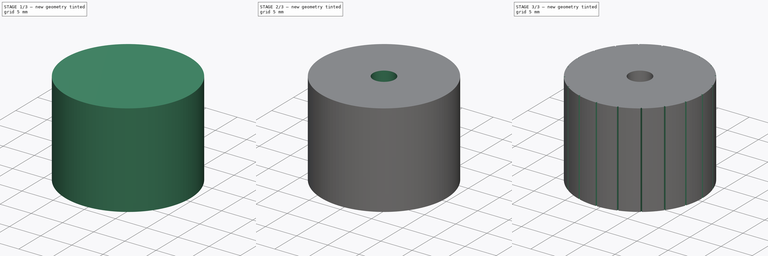
[diagram: build sequence overview — one tinted view per stage of 3, left to right]
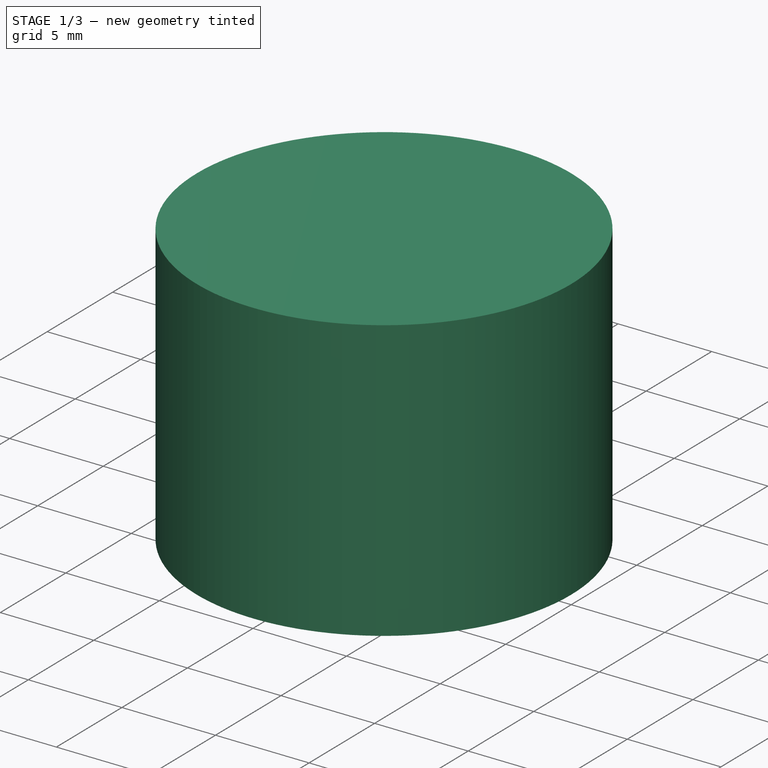
[diagram: stage 1 of 3 — iso view after this stage's code; geometry added in this stage tinted green]
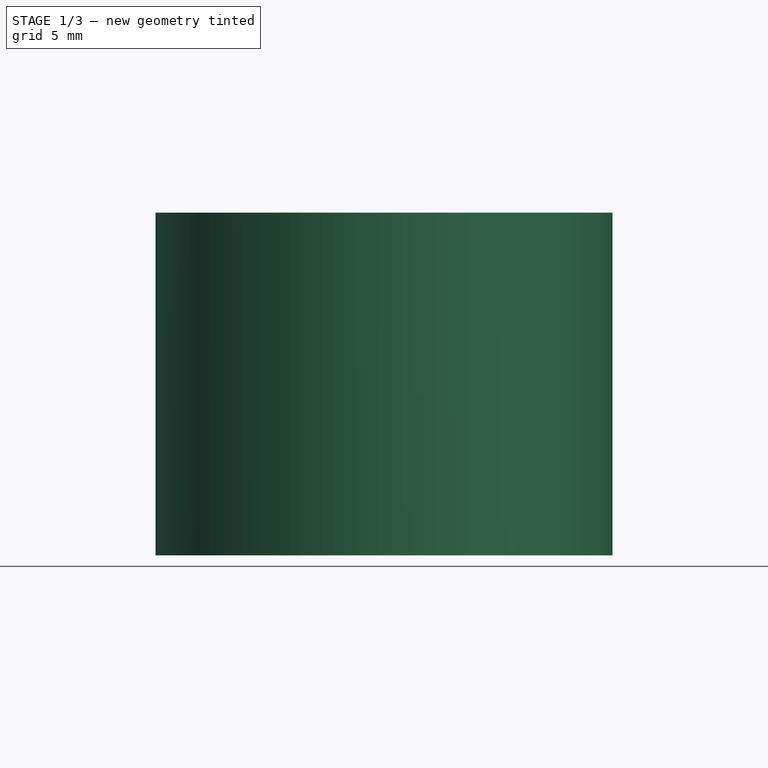
[diagram: stage 1 of 3 — front view after this stage's code; geometry added in this stage tinted green]
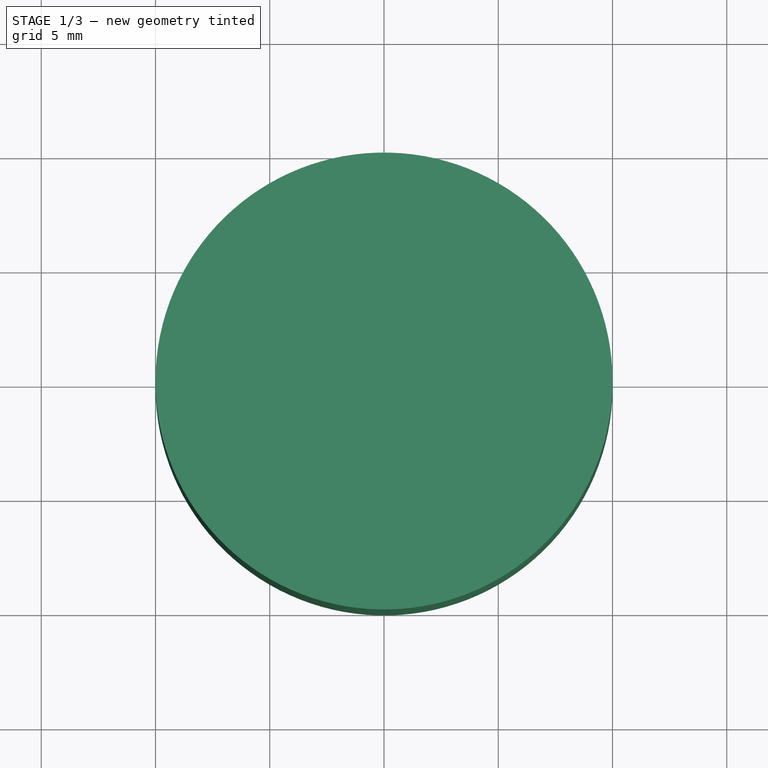
[diagram: stage 1 of 3 — top view after this stage's code; geometry added in this stage tinted green]
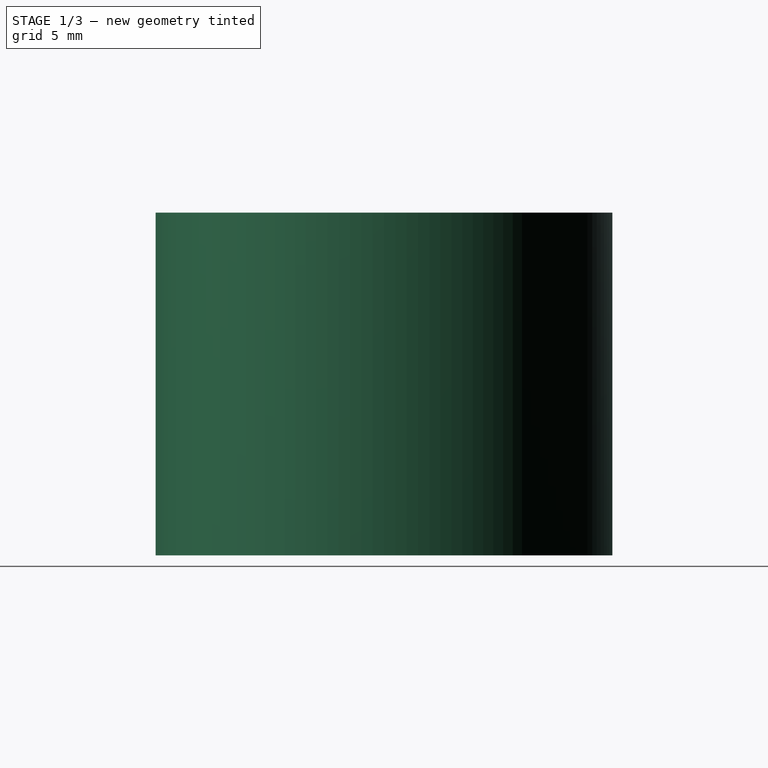
[diagram: stage 1 of 3 — right view after this stage's code; geometry added in this stage tinted green]
FCSTD DOCUMENT  (FreeCAD 0.19R)
Label: knurledNut-mac-2-cleanup
License: All rights reserved
LicenseURL: http://en.wikipedia.org/wiki/All_rights_reserved
objects: Sketcher::SketchObject×4, PartDesign::Pocket×3, Spreadsheet::Sheet×1, PartDesign::Pad×1, PartDesign::PolarPattern×1, PartDesign::Body×1
note: 14 computed .brp shape members not serialized (recipe doc carries the construction recipe); baked Part::Feature solids carry a one-line shape summary decoded from their .brp

FEATURE [Sketcher::SketchObject] Sketch
  MapMode = 5
  Support = -> [XY_Plane]
  expr: Constraints[1] = Spreadsheet.outerdia
  sketch-geometry (1):
    g0: Circle CenterX=0 CenterY=0 CenterZ=0 NormalX=0 NormalY=0 NormalZ=1 AngleXU=0 Radius=10
  constraints (2):
    c: Coincident(g0,g-1)
    c: Diameter(g0) = 20
FEATURE [Spreadsheet::Sheet] Spreadsheet
  cells = A1=Outer Diameter; B1(outerdia)=20; C1=Sets the OD of the knob; A2=Overall height; B2(ovrhei)=15; C2=Sets the height of the knob; A3=Bottom of nut; B3(nutbottom)=3; C3=Sets distance of nut from bottom of knob; A4=Nut thickness; B4(nutthk)=2; C4=Sets the thickness of the nut; A5=Screw diameter; B5(scrdia)=3.5; C5=Sets the size of hole through knob; A6=Hex size; B6(hexsiz)=8; C6=Sets the distance across the flats of nut; A8=Diameter Knurls outside; B8(knurlod)==outerdia + knurldep; C8=Calculated value (not changed by user); A9=Diameter Knurls inside; B9(knurlid)==outerdia - knurldep; C9=Calculated value (not changed by user); A10=Depth of knurl; B10(knurldep)=0.5; A11=Angle knurl; B11(knurlang)=45; A12=Knurl count; B12(knurlcnt)==knurllim == 1 ? knurlcntmin : knurlcntcalc; C12=Calculated value (not changed by user); A13=Circumferance; B13(outercircum)==pi * outerdia; C13=Calculated value (not changed by user); A14=Chord Length; B14(chordlen)==2 * tan(knurlang / 2) * knurldep / 2; C14=Calculated value (not changed by user); A15=Knurl count minimum; B15(knurlcntmin)=20; C15=Sets the minimum number of knurls; A16=Knurl count calc; B16(knurlcntcalc)==floor(round(outercircum / chordlen)) - 200; C16=Calculated value (not changed by user); A17=Limit knurl count(1=yes, 0 = no); B17(knurllim)=1; C17=Indicates if calculated knurls used or not; A18=Knurl count adj; B18(knurlcntadj)==knurlcntcalc <= knurlcntmin ? kurlcntmin : knurlcntcalc; C18=Calculated value (not changed by user)
FEATURE [PartDesign::Pad] Pad
  Length = 15
  Length2 = 100
  Profile = -> Sketch
  Type = 0
  expr: Length = Spreadsheet.ovrhei
FEATURE [Sketcher::SketchObject] Sketch001
  AttachmentOffset = pos=(0,0,3) rot=(0,0,1;0rad)
  MapMode = 5
  Placement = pos=(0,0,3) rot=(0,0,1;0rad)
  Support = -> [XY_Plane]
  expr: .AttachmentOffset.Base.z = Spreadsheet.nutbottom
  expr: Constraints[19] = Spreadsheet.hexsiz
  sketch-geometry (7):
    g0: LineSegment StartX=4.6188 StartY=-9e-16 StartZ=0 EndX=2.3094 EndY=4 EndZ=0
    g1: LineSegment StartX=2.3094 StartY=4 StartZ=0 EndX=-2.3094 EndY=4 EndZ=0
    g2: LineSegment StartX=-2.3094 StartY=4 StartZ=0 EndX=-4.6188 EndY=4e-16 EndZ=0
    g3: LineSegment StartX=-4.6188 StartY=4e-16 StartZ=0 EndX=-2.3094 EndY=-4 EndZ=0
    g4: LineSegment StartX=-2.3094 StartY=-4 StartZ=0 EndX=2.3094 EndY=-4 EndZ=0
    g5: LineSegment StartX=2.3094 StartY=-4 StartZ=0 EndX=4.6188 EndY=-9e-16 EndZ=0
    g6: Circle [constr] CenterX=0 CenterY=0 CenterZ=0 NormalX=0 NormalY=0 NormalZ=1 AngleXU=0 Radius=4.6188
  constraints (16):
    c: Coincident(g0,g1)
    c: Coincident(g1,g2)
    c: Coincident(g2,g3)
    c: Coincident(g3,g4)
    c: Coincident(g4,g5)
    c: Coincident(g5,g0)
    c: Equal(g0, g1-g5) x5
    c: PointOnObject(g0,g6)
    c: PointOnObject(g1,g6)
    c: PointOnObject(g2,g6)
    c: PointOnObject(g3,g6)
    c: PointOnObject(g4,g6)
    c: PointOnObject(g5,g6)
    c: Coincident(g6,g-1)
    c: Horizontal(g1)
    c: DistanceY(g4,g0) = 8
FEATURE [PartDesign::Pocket] Pocket
  BaseFeature = -> Pad
  Length = 2
  Length2 = 100
  Profile = -> Sketch001
  Reversed = true
  Type = 0
  expr: Length = Spreadsheet.nutthk
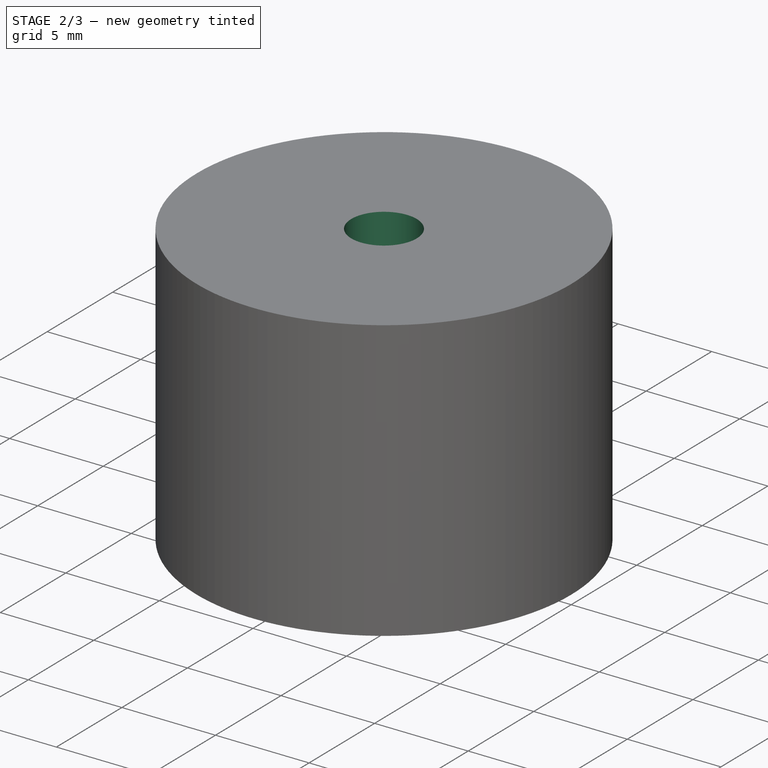
[diagram: stage 2 of 3 — iso view after this stage's code; geometry added in this stage tinted green]
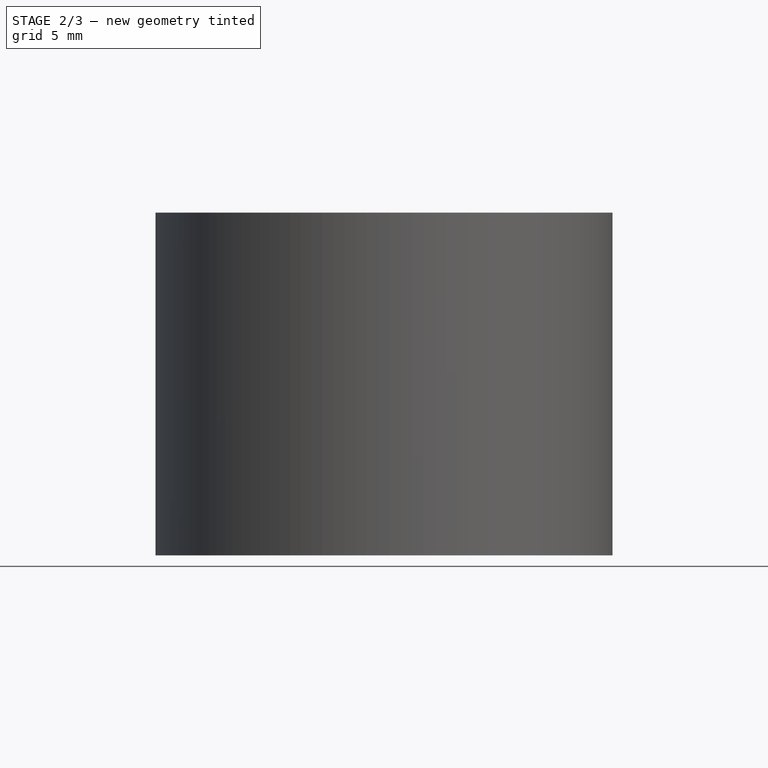
[diagram: stage 2 of 3 — front view after this stage's code; geometry added in this stage tinted green]
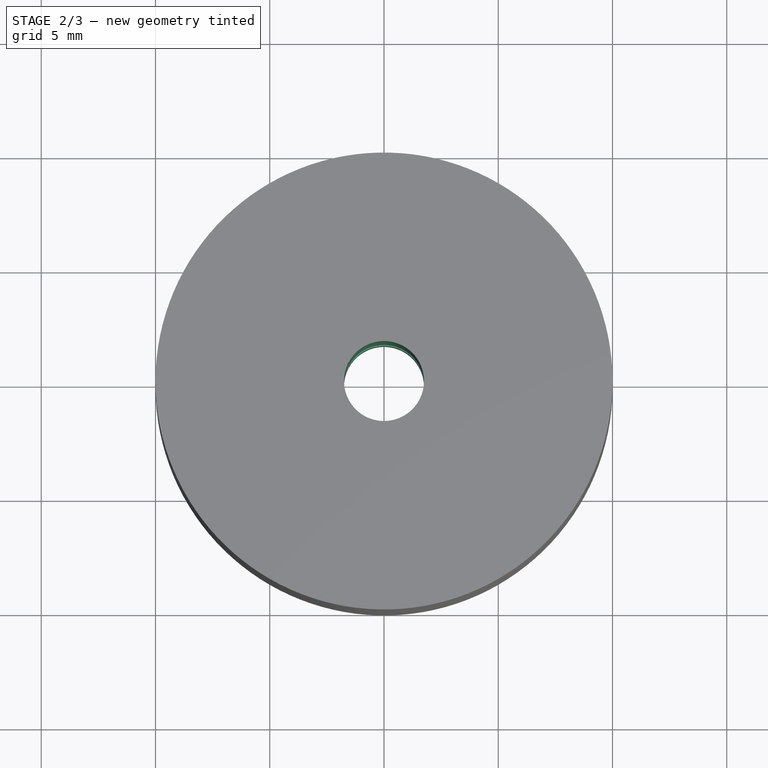
[diagram: stage 2 of 3 — top view after this stage's code; geometry added in this stage tinted green]
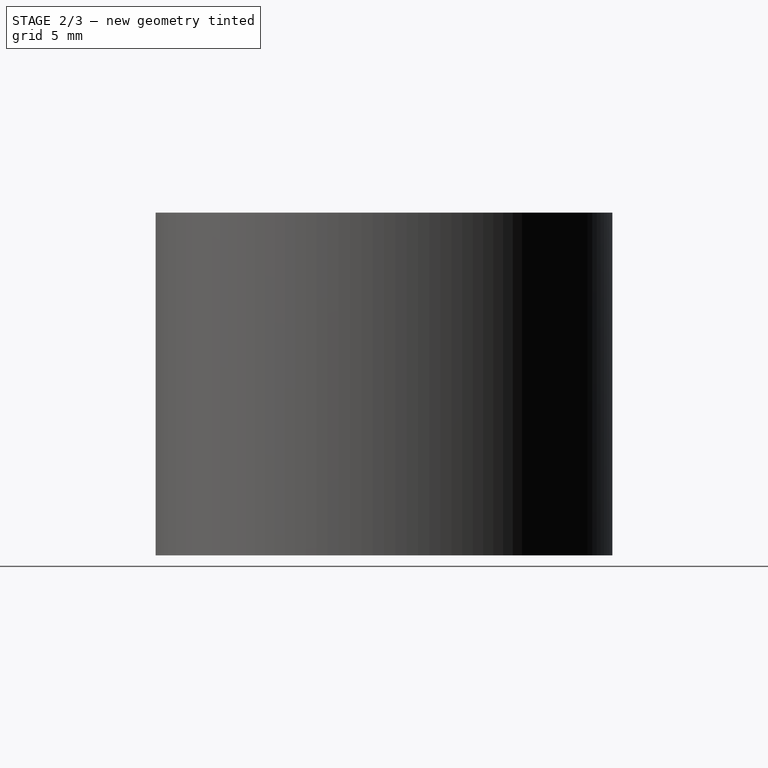
[diagram: stage 2 of 3 — right view after this stage's code; geometry added in this stage tinted green]
FEATURE [Sketcher::SketchObject] Sketch002
  MapMode = 5
  Support = -> [XY_Plane]
  expr: Constraints[1] = Spreadsheet.scrdia
  sketch-geometry (1):
    g0: Circle CenterX=0 CenterY=0 CenterZ=0 NormalX=0 NormalY=0 NormalZ=1 AngleXU=0 Radius=1.75
  constraints (2):
    c: Coincident(g0,g-1)
    c: Diameter(g0) = 3.5
FEATURE [PartDesign::Pocket] Pocket001
  BaseFeature = -> Pocket
  Length = 5
  Length2 = 100
  Profile = -> Sketch002
  Reversed = true
  Type = 1
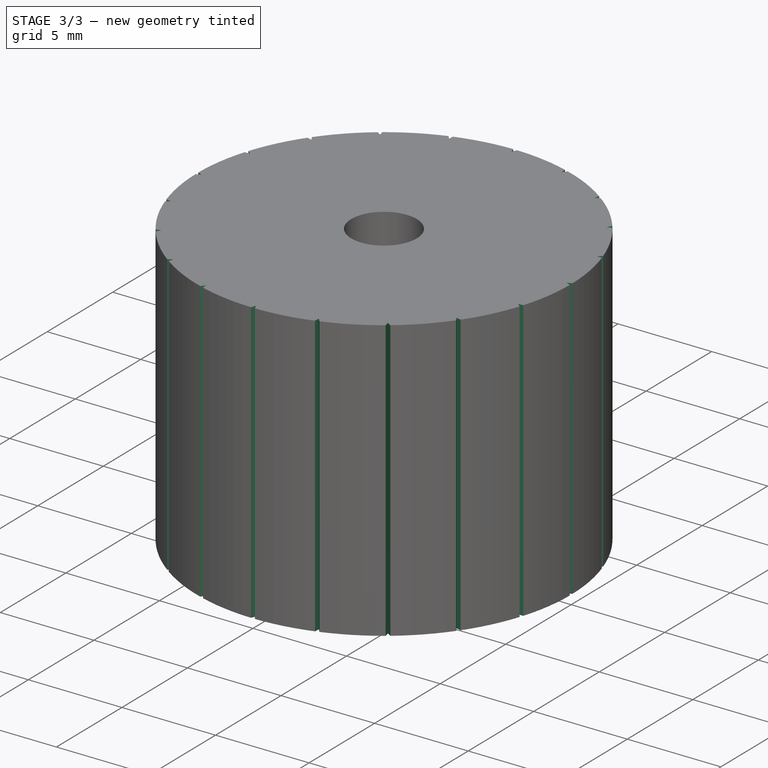
[diagram: stage 3 of 3 — iso view after this stage's code; geometry added in this stage tinted green]
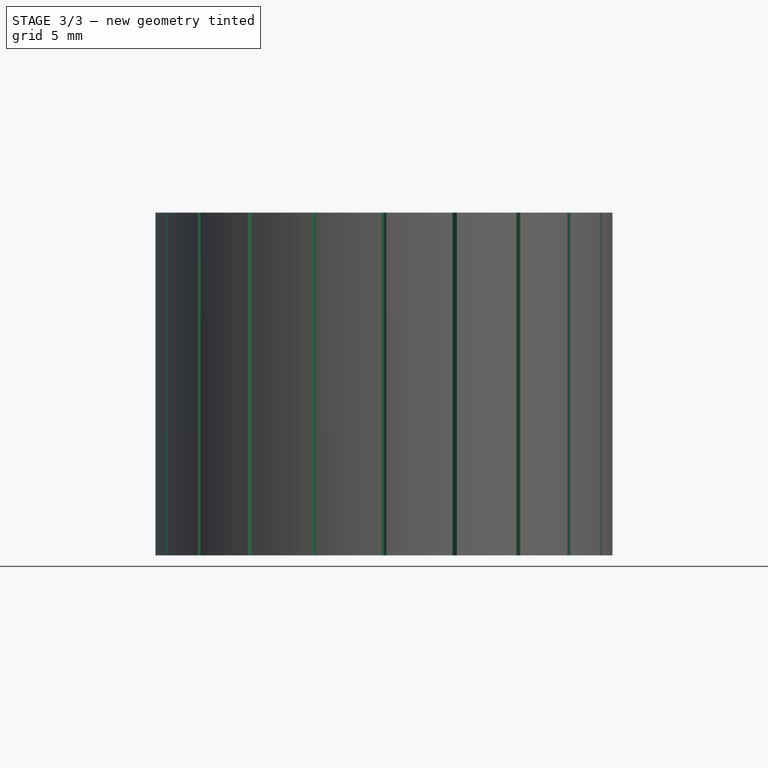
[diagram: stage 3 of 3 — front view after this stage's code; geometry added in this stage tinted green]
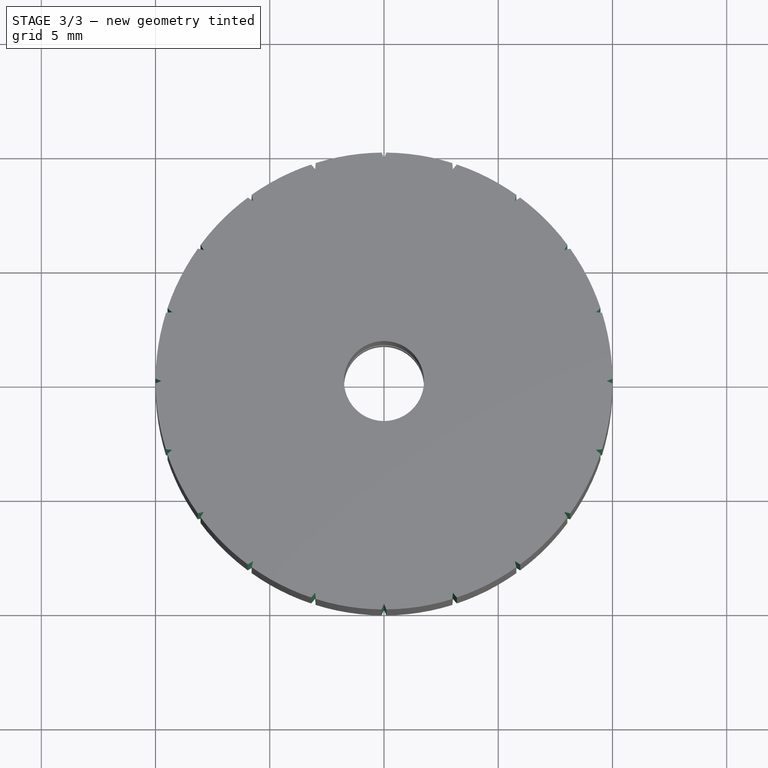
[diagram: stage 3 of 3 — top view after this stage's code; geometry added in this stage tinted green]
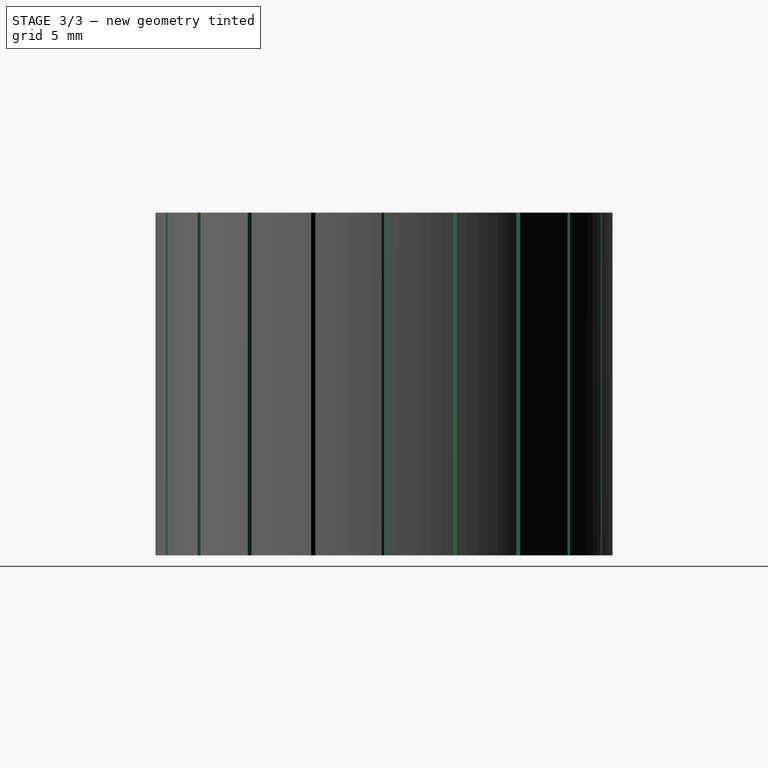
[diagram: stage 3 of 3 — right view after this stage's code; geometry added in this stage tinted green]
FEATURE [Sketcher::SketchObject] Sketch003
  ExternalGeometry = -> [Sketch]
  MapMode = 5
  Support = -> [XY_Plane]
  expr: Constraints[13] = Spreadsheet.knurlid
  expr: Constraints[15] = Spreadsheet.knurlod
  sketch-geometry (7):
    g0: LineSegment StartX=-0.206247 StartY=10.2479 StartZ=0 EndX=0.206247 EndY=10.2479 EndZ=0
    g1: LineSegment StartX=0.206247 StartY=10.2479 StartZ=0 EndX=0 EndY=9.75 EndZ=0
    g2: LineSegment StartX=0 StartY=9.75 StartZ=0 EndX=-0.206247 EndY=10.2479 EndZ=0
    g3: LineSegment [constr] StartX=-0.103332 StartY=9.99947 StartZ=0 EndX=0.103332 EndY=9.99947 EndZ=0
    g4: Circle [constr] CenterX=0 CenterY=0 CenterZ=0 NormalX=0 NormalY=0 NormalZ=1 AngleXU=0 Radius=9.75
    g5: Circle [constr] CenterX=0 CenterY=0 CenterZ=0 NormalX=0 NormalY=0 NormalZ=1 AngleXU=0 Radius=10.25
    g6: LineSegment [constr] StartX=0 StartY=9.75 StartZ=0 EndX=0 EndY=10.2479 EndZ=0
  constraints (22):
    c: Coincident(g0,g1)
    c: PointOnObject(g1,g-2)
    c: Coincident(g1,g2)
    c: Coincident(g2,g0)
    c: Angle(g1,g2) = 0.785398
    c: Symmetric(g0,g0,g-2)
    c: PointOnObject(g3,g2)
    c: PointOnObject(g3,g1)
    c: Horizontal(g3)
    c: DistanceX(g3,g3) = 0.206664  'ChordLen'
    c: PointOnObject(g3,g-3)
    c: Coincident(g4,g-1)
    c: PointOnObject(g1,g4)
    c: Diameter(g4) = 19.5
    c: Coincident(g5,g-1)
    c: Diameter(g5) = 20.5
    c: PointOnObject(g0,g5)
    c: DistanceY(g1,g3) = 0.249466
    c: DistanceY(g1,g0) = 0.497925
    c: Coincident(g6,g1)
    c: PointOnObject(g6,g-2)
    c: PointOnObject(g6,g0)
FEATURE [PartDesign::Pocket] Pocket002
  BaseFeature = -> Pocket001
  Length = 5
  Length2 = 100
  Profile = -> Sketch003
  Reversed = true
  Type = 1
FEATURE [PartDesign::PolarPattern] PolarPattern
  Angle = 360
  Axis = -> Sketch003 [N_Axis]
  BaseFeature = -> Pocket002
  Occurrences = 20
  Originals = -> [Pocket002]
  expr: Occurrences = Spreadsheet.knurlcnt
FEATURE [PartDesign::Body] Body
  Group = -> [Sketch,Pad,Sketch001,Pocket,Sketch002,Pocket001,Sketch003,Pocket002,PolarPattern]
  Origin = -> Origin
  Tip = -> PolarPattern
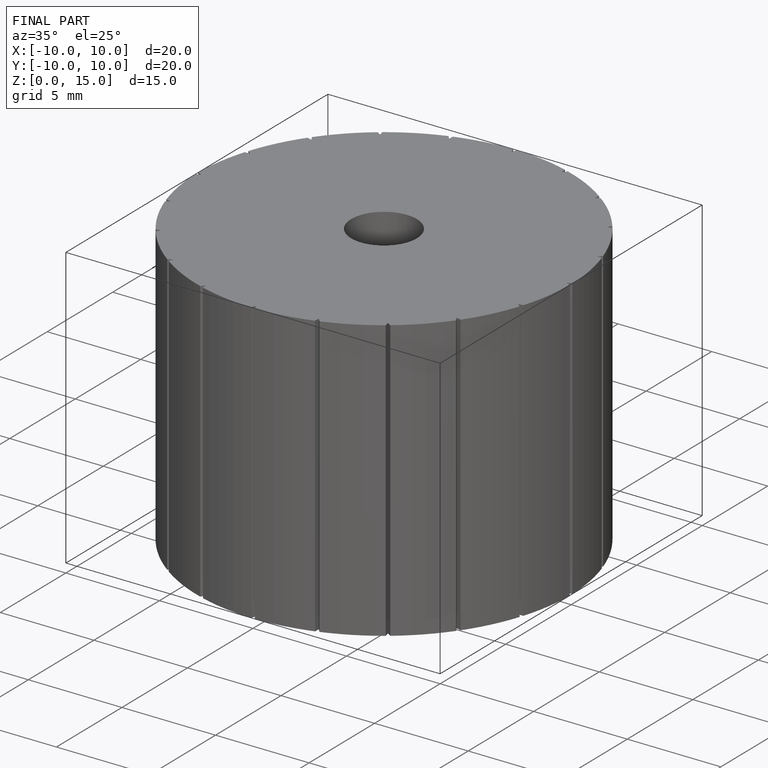
[diagram: finished part — iso view with bounding-box wireframe]
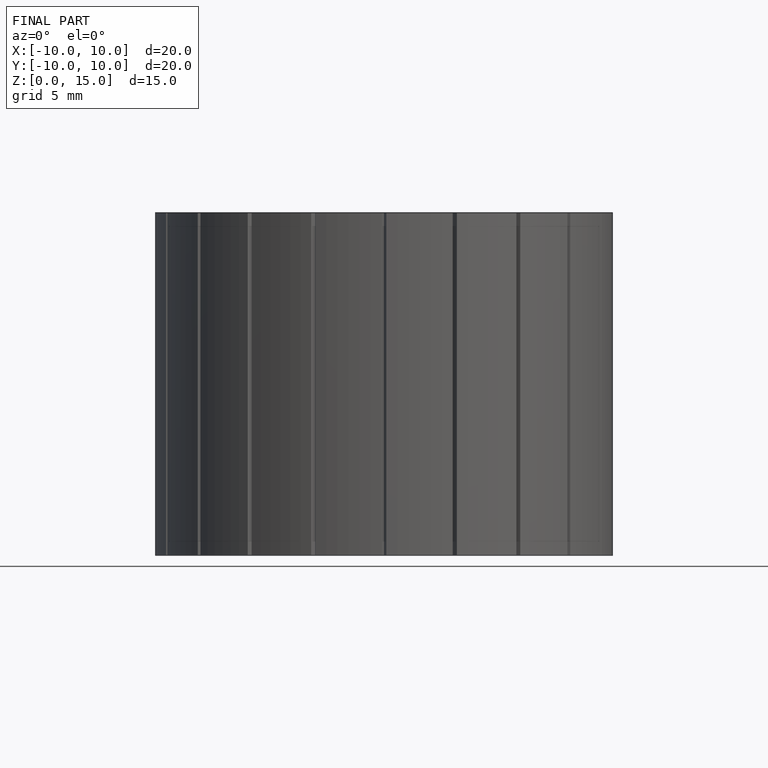
[diagram: finished part — front view with bounding-box wireframe]
